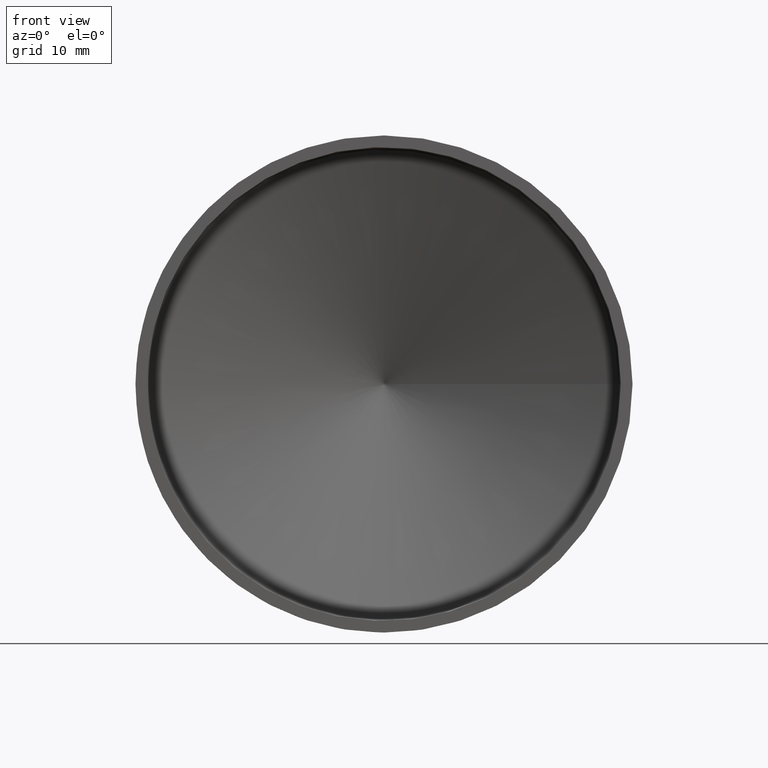
[diagram: clean part render]
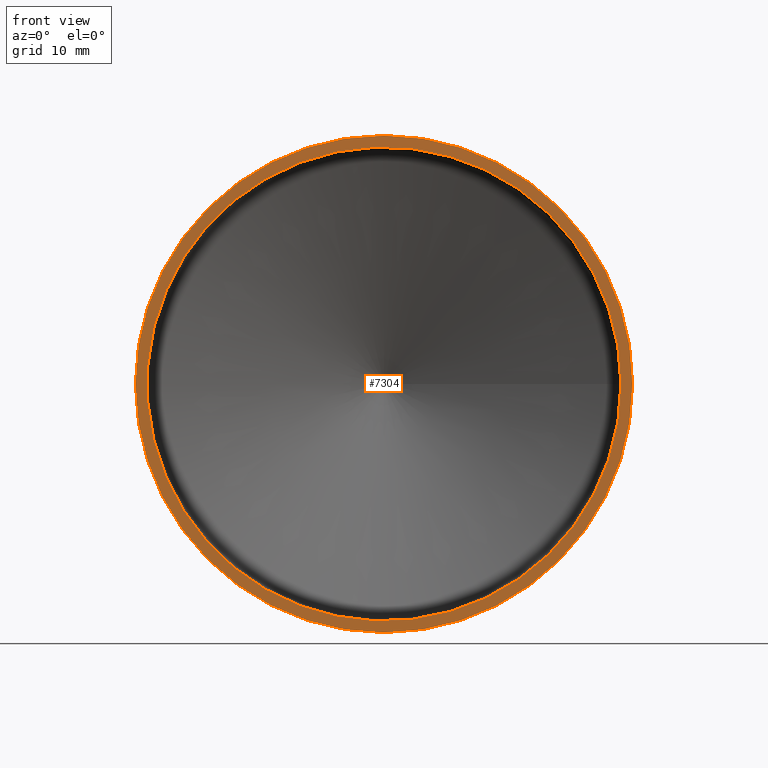
[diagram: same view with one face highlighted and labeled with its STEP entity id]
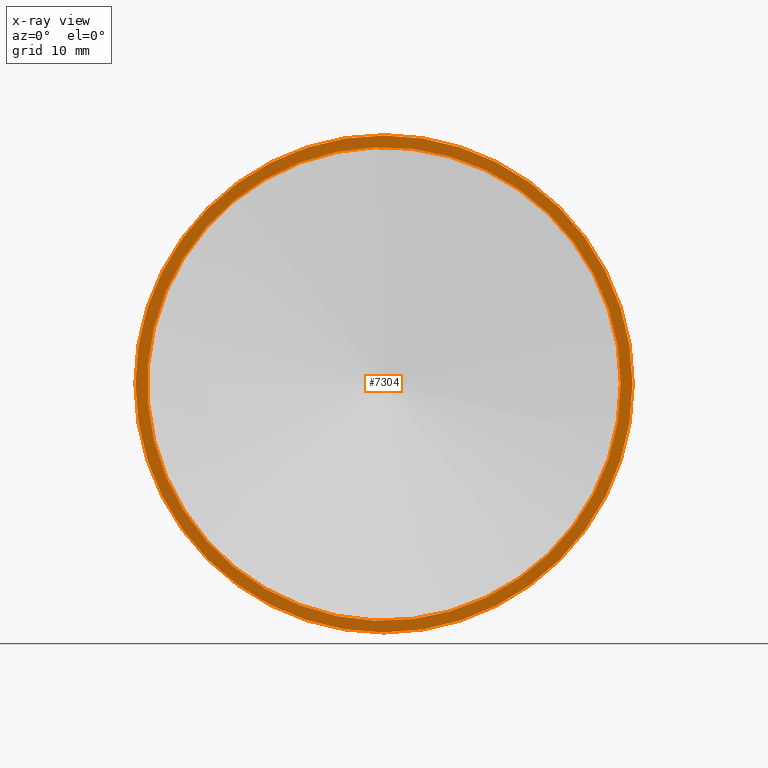
[diagram: x-ray of the same camera — body ghosted, the highlighted face saturated]
A machine part, front view. The second image highlights one B-rep face of the part: STEP entity #7304.
The next image is the same camera in x-ray: the body ghosted, the highlighted face saturated — about 0% of this face is hidden behind the body in this view.
In plain terms, the highlighted planar face has unit normal (0, -1, -0).
Its self-contained STEP definition (entity closure, byte-faithful):
#19 = DIRECTION ( 'NONE',  ( 1.000000000000000000, 2.041077998578925000E-017, 0.0000000000000000000 ) ) ;
#394 = EDGE_LOOP ( 'NONE', ( #1031 ) ) ;
#604 = ORIENTED_EDGE ( 'NONE', *, *, #1585, .F. ) ;
#733 = DIRECTION ( 'NONE',  ( 2.041077998578925000E-017, -1.000000000000000000, -0.0000000000000000000 ) ) ;
#1031 = ORIENTED_EDGE ( 'NONE', *, *, #4103, .T. ) ;
#1478 = AXIS2_PLACEMENT_3D ( 'NONE', #4059, #6747, #4084 ) ;
#1585 = EDGE_CURVE ( 'NONE', #7508, #7508, #3308, .T. ) ;
#2938 = AXIS2_PLACEMENT_3D ( 'NONE', #3412, #4628, #19 ) ;
#2961 = AXIS2_PLACEMENT_3D ( 'NONE', #3470, #733, #6123 ) ;
#3308 = CIRCLE ( 'NONE', #2961, 30.50000000000000000 ) ;
#3412 = CARTESIAN_POINT ( 'NONE',  ( 5.306802796305205500E-016, 0.0000000000000000000, 0.0000000000000000000 ) ) ;
#3470 = CARTESIAN_POINT ( 'NONE',  ( 5.306802796305205500E-016, 0.0000000000000000000, 0.0000000000000000000 ) ) ;
#3984 = VERTEX_POINT ( 'NONE', #7194 ) ;
#4059 = CARTESIAN_POINT ( 'NONE',  ( 30.50000000000000000, -1.530808498934194900E-017, 0.0000000000000000000 ) ) ;
#4084 = DIRECTION ( 'NONE',  ( 1.000000000000000000, 2.041077998578925000E-017, 0.0000000000000000000 ) ) ;
#4103 = EDGE_CURVE ( 'NONE', #3984, #3984, #7037, .T. ) ;
#4105 = FACE_BOUND ( 'NONE', #4359, .T. ) ;
#4359 = EDGE_LOOP ( 'NONE', ( #604 ) ) ;
#4444 = CARTESIAN_POINT ( 'NONE',  ( 30.50000000000000000, 6.225287895665721100E-016, 0.0000000000000000000 ) ) ;
#4628 = DIRECTION ( 'NONE',  ( 2.041077998578925000E-017, -1.000000000000000000, -0.0000000000000000000 ) ) ;
#4751 = PLANE ( 'NONE',  #1478 ) ;
#5886 = FACE_OUTER_BOUND ( 'NONE', #394, .T. ) ;
#6123 = DIRECTION ( 'NONE',  ( 1.000000000000000000, 2.041077998578925000E-017, 0.0000000000000000000 ) ) ;
#6747 = DIRECTION ( 'NONE',  ( 2.041077998578925000E-017, -1.000000000000000000, -0.0000000000000000000 ) ) ;
#7037 = CIRCLE ( 'NONE', #2938, 32.00000000000000000 ) ;
#7194 = CARTESIAN_POINT ( 'NONE',  ( 32.00000000000000000, 6.531449595452560000E-016, 0.0000000000000000000 ) ) ;
#7304 = ADVANCED_FACE ( 'NONE', ( #5886, #4105 ), #4751, .T. ) ;
#7508 = VERTEX_POINT ( 'NONE', #4444 ) ;